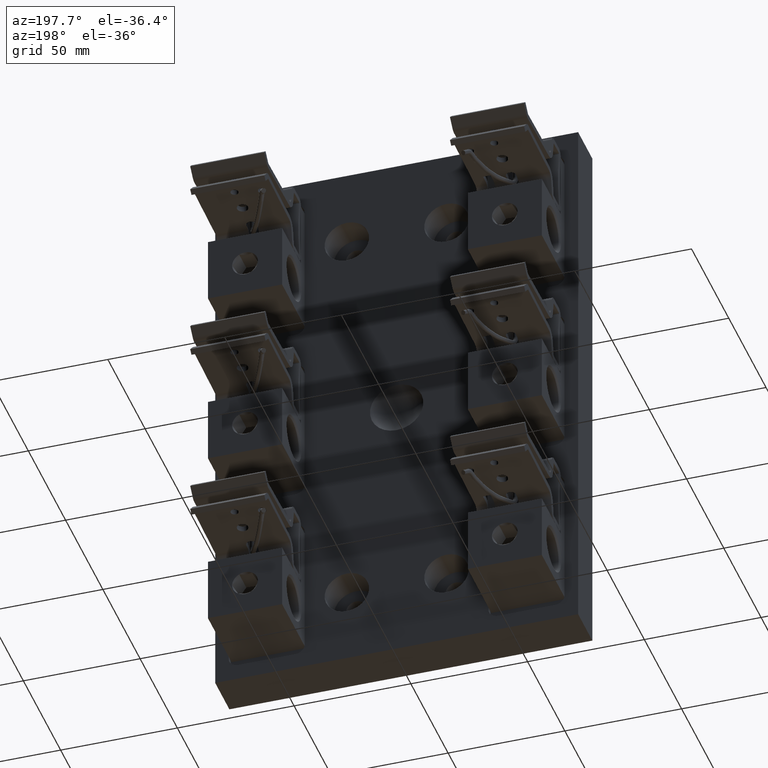
[diagram: clean part render]
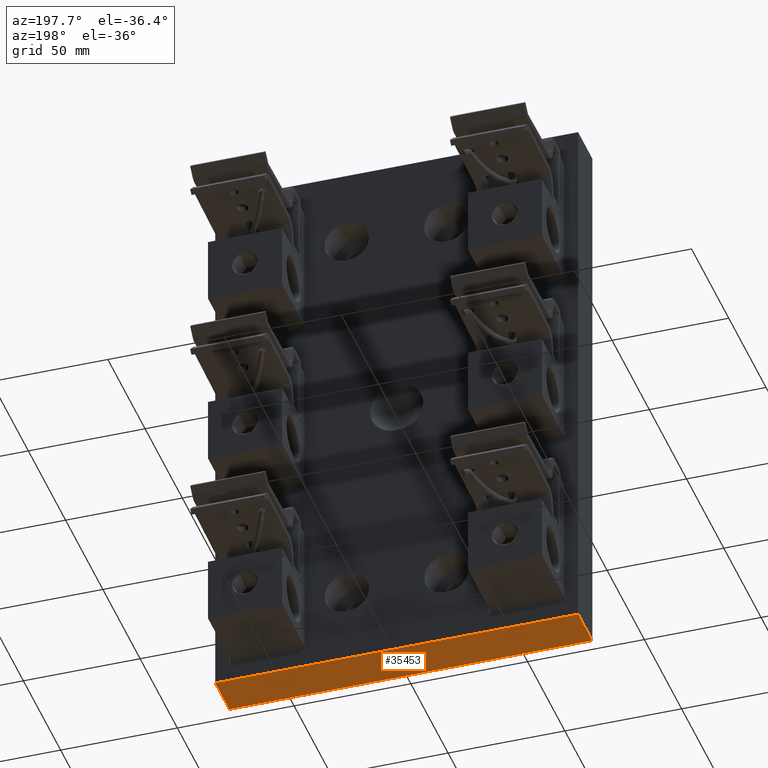
[diagram: same view with one face highlighted and labeled with its STEP entity id]
A machine part, auxiliary view. The second image highlights one B-rep face of the part: STEP entity #35453.
In plain terms, the highlighted planar face has unit normal (0, 0, 1).
Its self-contained STEP definition (entity closure, byte-faithful):
#1239 = CARTESIAN_POINT ( 'NONE',  ( 3.060000000000000100, 0.0000000000000000000, -4.809999999999999600 ) ) ;
#3381 = LINE ( 'NONE', #49055, #21404 ) ;
#5667 = EDGE_CURVE ( 'NONE', #55375, #34913, #38173, .T. ) ;
#6431 = ORIENTED_EDGE ( 'NONE', *, *, #37630, .F. ) ;
#7077 = DIRECTION ( 'NONE',  ( 0.0000000000000000000, 1.000000000000000000, 0.0000000000000000000 ) ) ;
#7279 = CARTESIAN_POINT ( 'NONE',  ( -3.060000000000000100, 0.0000000000000000000, -4.809999999999999600 ) ) ;
#8839 = EDGE_CURVE ( 'NONE', #25572, #56820, #45265, .T. ) ;
#9764 = VECTOR ( 'NONE', #7077, 39.37007874015748100 ) ;
#13558 = CARTESIAN_POINT ( 'NONE',  ( 3.060000000000000100, 0.0000000000000000000, -4.809999999999999600 ) ) ;
#15913 = DIRECTION ( 'NONE',  ( -1.000000000000000000, -0.0000000000000000000, -0.0000000000000000000 ) ) ;
#17803 = PLANE ( 'NONE',  #48544 ) ;
#17902 = DIRECTION ( 'NONE',  ( -1.000000000000000000, -0.0000000000000000000, -0.0000000000000000000 ) ) ;
#18003 = DIRECTION ( 'NONE',  ( 1.000000000000000000, 0.0000000000000000000, -0.0000000000000000000 ) ) ;
#19464 = ORIENTED_EDGE ( 'NONE', *, *, #8839, .T. ) ;
#20605 = EDGE_CURVE ( 'NONE', #55375, #25572, #3381, .T. ) ;
#21404 = VECTOR ( 'NONE', #17902, 39.37007874015748100 ) ;
#21967 = CARTESIAN_POINT ( 'NONE',  ( -3.060000000000000100, 0.7500000000000001100, -4.809999999999999600 ) ) ;
#25572 = VERTEX_POINT ( 'NONE', #57389 ) ;
#27257 = FACE_OUTER_BOUND ( 'NONE', #31443, .T. ) ;
#30408 = VECTOR ( 'NONE', #15913, 39.37007874015748100 ) ;
#31443 = EDGE_LOOP ( 'NONE', ( #19464, #6431, #41396, #41439 ) ) ;
#31808 = LINE ( 'NONE', #42610, #30408 ) ;
#34913 = VERTEX_POINT ( 'NONE', #40255 ) ;
#35453 = ADVANCED_FACE ( 'NONE', ( #27257 ), #17803, .F. ) ;
#37630 = EDGE_CURVE ( 'NONE', #34913, #56820, #31808, .T. ) ;
#38173 = LINE ( 'NONE', #45435, #39562 ) ;
#39562 = VECTOR ( 'NONE', #49858, 39.37007874015748100 ) ;
#40255 = CARTESIAN_POINT ( 'NONE',  ( 3.060000000000000100, 0.7500000000000001100, -4.809999999999999600 ) ) ;
#41396 = ORIENTED_EDGE ( 'NONE', *, *, #5667, .F. ) ;
#41439 = ORIENTED_EDGE ( 'NONE', *, *, #20605, .T. ) ;
#42610 = CARTESIAN_POINT ( 'NONE',  ( 3.060000000000000100, 0.7500000000000001100, -4.809999999999999600 ) ) ;
#44694 = DIRECTION ( 'NONE',  ( 0.0000000000000000000, 0.0000000000000000000, 1.000000000000000000 ) ) ;
#45265 = LINE ( 'NONE', #7279, #9764 ) ;
#45435 = CARTESIAN_POINT ( 'NONE',  ( 3.060000000000000100, 0.0000000000000000000, -4.809999999999999600 ) ) ;
#48544 = AXIS2_PLACEMENT_3D ( 'NONE', #13558, #44694, #18003 ) ;
#49055 = CARTESIAN_POINT ( 'NONE',  ( 3.060000000000000100, 0.0000000000000000000, -4.809999999999999600 ) ) ;
#49858 = DIRECTION ( 'NONE',  ( 0.0000000000000000000, 1.000000000000000000, 0.0000000000000000000 ) ) ;
#55375 = VERTEX_POINT ( 'NONE', #1239 ) ;
#56820 = VERTEX_POINT ( 'NONE', #21967 ) ;
#57389 = CARTESIAN_POINT ( 'NONE',  ( -3.060000000000000100, 0.0000000000000000000, -4.809999999999999600 ) ) ;